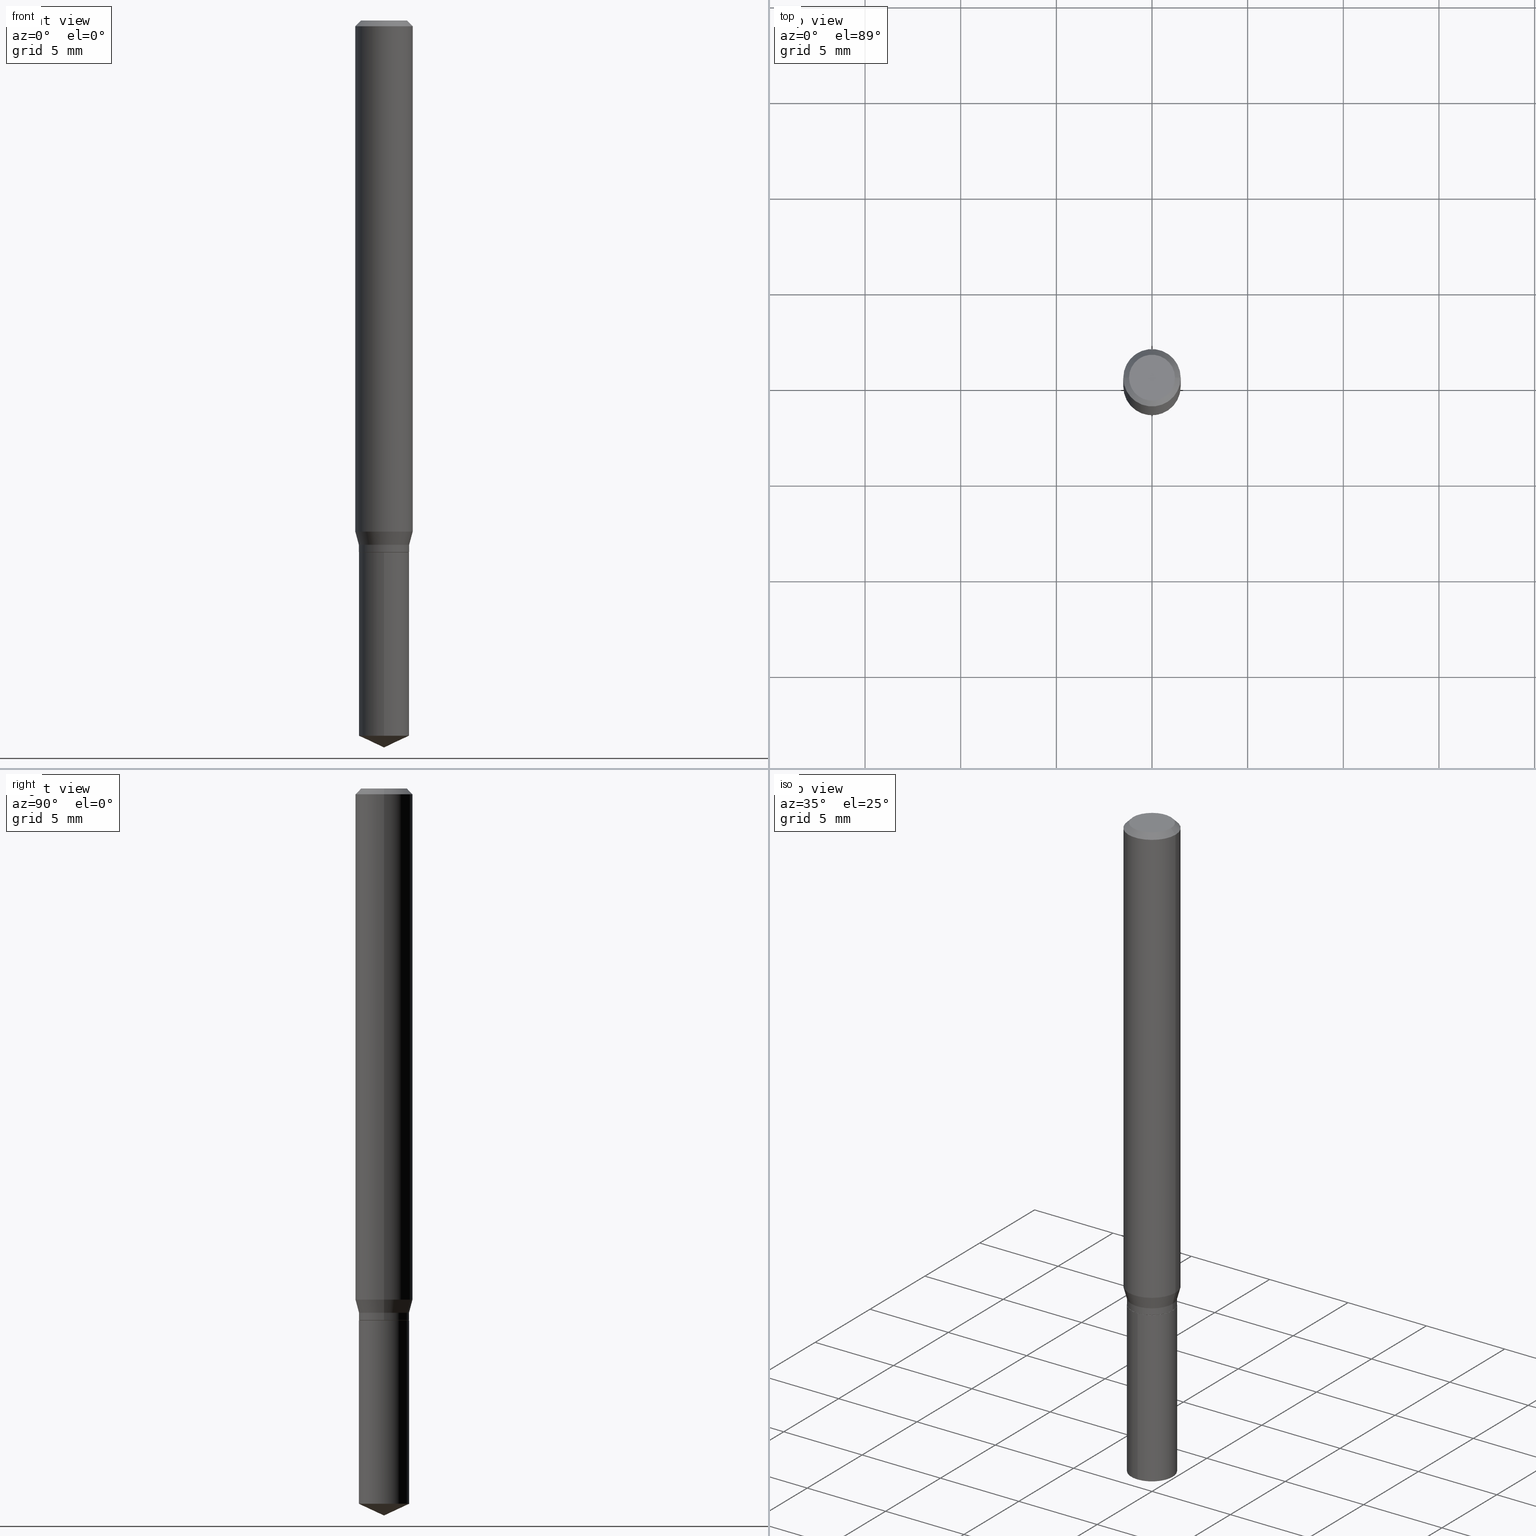
[diagram: canonical four-view strip — front | top / right | iso, engineering-drawing reading convention]
A machine part, canonical four-view strip (front | top / right | iso — engineering-drawing reading convention). The complete STEP part file that produces these views, byte-faithful:
ISO-10303-21;
HEADER;
FILE_DESCRIPTION (( 'STEP AP203' ),
    '1' );
FILE_NAME ('08020.STEP',
    '2024-04-24T09:02:58',
    ( '' ),
    ( '' ),
    'SwSTEP 2.0',
    'SolidWorks 2023',
    '' );
FILE_SCHEMA (( 'CONFIG_CONTROL_DESIGN' ));
ENDSEC;

DATA;
#1 = UNCERTAINTY_MEASURE_WITH_UNIT (LENGTH_MEASURE( 1.000000000000000082E-05 ), #9, 'distance_accuracy_value', 'NONE');
#2 = ADVANCED_FACE ( 'NONE', ( #478 ), #49, .T. ) ;
#3 = LINE ( 'NONE', #380, #401 ) ;
#4 = CYLINDRICAL_SURFACE ( 'NONE', #436, 0.05175000000000000433 ) ;
#5 = AXIS2_PLACEMENT_3D ( 'NONE', #216, #373, #435 ) ;
#6 = LENGTH_MEASURE_WITH_UNIT ( LENGTH_MEASURE( 0.02539999999999999897 ), #129 );
#7 = DIRECTION ( 'NONE',  ( 6.439704144417035086E-15, 0.9063077870366528233, 0.4226182617406932240 ) ) ;
#8 = ORIENTED_EDGE ( 'NONE', *, *, #484, .F. ) ;
#9 =( CONVERSION_BASED_UNIT ( 'INCH', #6 ) LENGTH_UNIT ( ) NAMED_UNIT ( #293 ) );
#10 = EDGE_CURVE ( 'NONE', #250, #333, #288, .T. ) ;
#11 = DIRECTION ( 'NONE',  ( -1.000000000000000000, 6.982962677686266711E-15, 0.000000000000000000 ) ) ;
#12 = VERTEX_POINT ( 'NONE', #270 ) ;
#13 = PERSON_AND_ORGANIZATION ( #91, #233 ) ;
#14 = DIRECTION ( 'NONE',  ( -2.445468806185136597E-29, 3.491481338843145583E-15, 1.000000000000000000 ) ) ;
#15 = DATE_AND_TIME ( #135, #344 ) ;
#16 = VECTOR ( 'NONE', #328, 39.37007874015748143 ) ;
#17 = LOCAL_TIME ( 5, 2, 58.00000000000000000, #253 ) ;
#18 = DIRECTION ( 'NONE',  ( 1.000000000000000000, -6.982962677686261977E-15, 0.000000000000000000 ) ) ;
#19 = VERTEX_POINT ( 'NONE', #341 ) ;
#20 = EDGE_CURVE ( 'NONE', #295, #437, #80, .T. ) ;
#21 = PERSON_AND_ORGANIZATION ( #91, #233 ) ;
#22 = DIRECTION ( 'NONE',  ( -2.445468806185136597E-29, 3.491481338843145583E-15, 1.000000000000000000 ) ) ;
#23 = ORIENTED_EDGE ( 'NONE', *, *, #10, .T. ) ;
#24 = DIRECTION ( 'NONE',  ( -1.000000000000000000, 6.982962677686265922E-15, -4.876176775795935793E-29 ) ) ;
#25 = ORIENTED_EDGE ( 'NONE', *, *, #326, .F. ) ;
#26 = DESIGN_CONTEXT ( 'detailed design', #96, 'design' ) ;
#27 = AXIS2_PLACEMENT_3D ( 'NONE', #460, #166, #282 ) ;
#28 = DIRECTION ( 'NONE',  ( 0.7071067811864267805, -2.468850131080992517E-15, 0.7071067811866682540 ) ) ;
#29 = ORIENTED_EDGE ( 'NONE', *, *, #414, .F. ) ;
#30 = AXIS2_PLACEMENT_3D ( 'NONE', #117, #39, #196 ) ;
#31 = CARTESIAN_POINT ( 'NONE',  ( 0.05175000000000000433, -3.613683185702643042E-16, 2.523421481474396857E-30 ) ) ;
#32 = EDGE_LOOP ( 'NONE', ( #367, #369, #423, #75 ) ) ;
#33 = ORIENTED_EDGE ( 'NONE', *, *, #326, .T. ) ;
#34 = DIRECTION ( 'NONE',  ( -2.445458899330790108E-29, 3.491495526022433205E-15, 1.000000000000000000 ) ) ;
#35 = DIRECTION ( 'NONE',  ( 1.000000000000000000, -6.982962677686265922E-15, 4.876176775795935793E-29 ) ) ;
#36 = CC_DESIGN_PERSON_AND_ORGANIZATION_ASSIGNMENT ( #432, #317, ( #85 ) ) ;
#37 = FACE_OUTER_BOUND ( 'NONE', #456, .T. ) ;
#38 = EDGE_CURVE ( 'NONE', #250, #371, #416, .T. ) ;
#39 = DIRECTION ( 'NONE',  ( -2.445468806185136597E-29, 3.491481338843145583E-15, 1.000000000000000000 ) ) ;
#40 = VECTOR ( 'NONE', #388, 39.37007874015748854 ) ;
#41 = SECURITY_CLASSIFICATION ( '', '', #101 ) ;
#42 = AXIS2_PLACEMENT_3D ( 'NONE', #304, #229, #35 ) ;
#43 = CARTESIAN_POINT ( 'NONE',  ( -0.05175000000000000433, 3.677058657558518770E-16, -2.545548909206914027E-30 ) ) ;
#44 = DIRECTION ( 'NONE',  ( -6.982962677686268288E-15, -1.000000000000000000, 3.520397390770439276E-15 ) ) ;
#45 = EDGE_CURVE ( 'NONE', #58, #371, #136, .T. ) ;
#46 = DATE_AND_TIME ( #358, #182 ) ;
#47 = DIRECTION ( 'NONE',  ( -6.982962677686268288E-15, -1.000000000000000000, 3.520397390770439276E-15 ) ) ;
#48 = ORIENTED_EDGE ( 'NONE', *, *, #414, .T. ) ;
#49 = CONICAL_SURFACE ( 'NONE', #234, 0.05904999999999999832, 0.7853981633974452814 ) ;
#50 = ADVANCED_FACE ( 'NONE', ( #376 ), #193, .T. ) ;
#51 = AXIS2_PLACEMENT_3D ( 'NONE', #57, #272, #11 ) ;
#52 = PERSON_AND_ORGANIZATION ( #91, #233 ) ;
#53 = PRODUCT_DEFINITION_SHAPE ( 'NONE', 'NONE',  #258 ) ;
#54 = CARTESIAN_POINT ( 'NONE',  ( 2.638660841873762235E-29, -3.767308364611753796E-15, -1.078999999999999959 ) ) ;
#55 = ADVANCED_BREP_SHAPE_REPRESENTATION ( '08020', ( #364, #346, #190 ), #74 ) ;
#56 = COORDINATED_UNIVERSAL_TIME_OFFSET ( 5, 0, .BEHIND. ) ;
#57 = CARTESIAN_POINT ( 'NONE',  ( 2.888098660104664204E-31, -4.123439461173780263E-17, -0.01181000000000007218 ) ) ;
#58 = VERTEX_POINT ( 'NONE', #155 ) ;
#59 = APPLICATION_PROTOCOL_DEFINITION ( 'international standard', 'config_control_design', 1994, #96 ) ;
#60 = DIRECTION ( 'NONE',  ( -6.982962677686265133E-15, -1.000000000000000000, 2.639466660545181459E-15 ) ) ;
#61 = EDGE_CURVE ( 'NONE', #219, #287, #354, .T. ) ;
#62 = COORDINATED_UNIVERSAL_TIME_OFFSET ( 5, 0, .BEHIND. ) ;
#63 = VECTOR ( 'NONE', #7, 39.37007874015748854 ) ;
#64 = FACE_OUTER_BOUND ( 'NONE', #103, .T. ) ;
#65 = VECTOR ( 'NONE', #486, 39.37007874015748143 ) ;
#66 = ORIENTED_EDGE ( 'NONE', *, *, #360, .F. ) ;
#67 = CARTESIAN_POINT ( 'NONE',  ( -0.05905000000000006771, 4.195754854663396409E-16, -2.904631170795525045E-30 ) ) ;
#68 = ORIENTED_EDGE ( 'NONE', *, *, #443, .T. ) ;
#69 = EDGE_CURVE ( 'NONE', #287, #219, #489, .T. ) ;
#70 = DIRECTION ( 'NONE',  ( -2.445468806185136877E-29, 3.491481338843145188E-15, 1.000000000000000000 ) ) ;
#71 = EDGE_LOOP ( 'NONE', ( #353, #441, #465, #404 ) ) ;
#72 = APPROVAL_DATE_TIME ( #149, #267 ) ;
#73 = CARTESIAN_POINT ( 'NONE',  ( 0.05124999999999999695, -4.179303162595244416E-15, -1.094500000000000028 ) ) ;
#74 =( GEOMETRIC_REPRESENTATION_CONTEXT ( 3 ) GLOBAL_UNCERTAINTY_ASSIGNED_CONTEXT ( ( #1 ) ) GLOBAL_UNIT_ASSIGNED_CONTEXT ( ( #9, #426, #244 ) ) REPRESENTATION_CONTEXT ( 'NONE', 'WORKASPACE' ) );
#75 = ORIENTED_EDGE ( 'NONE', *, *, #307, .F. ) ;
#76 = ORIENTED_EDGE ( 'NONE', *, *, #98, .T. ) ;
#77 = CYLINDRICAL_SURFACE ( 'NONE', #158, 0.05175000000000000433 ) ;
#78 = CARTESIAN_POINT ( 'NONE',  ( 2.888098660104664204E-31, -4.123439461173780263E-17, -0.01181000000000007218 ) ) ;
#79 = APPROVAL_PERSON_ORGANIZATION ( #387, #267, #179 ) ;
#80 = CIRCLE ( 'NONE', #383, 0.05175000000000000433 ) ;
#81 = DIRECTION ( 'NONE',  ( 1.000000000000000000, -6.982962677686266711E-15, 0.000000000000000000 ) ) ;
#82 = DIRECTION ( 'NONE',  ( 1.000000000000000000, -6.982962677686271444E-15, 0.000000000000000000 ) ) ;
#83 = DIRECTION ( 'NONE',  ( -6.982962677686265133E-15, -1.000000000000000000, 2.639466660545181459E-15 ) ) ;
#84 = CONICAL_SURFACE ( 'NONE', #153, 0.05124999999999999695, 0.7853981633972775267 ) ;
#85 = PRODUCT_DEFINITION_FORMATION_WITH_SPECIFIED_SOURCE ( 'ANY', '', #407, .NOT_KNOWN. ) ;
#86 = EDGE_CURVE ( 'NONE', #93, #263, #121, .T. ) ;
#87 = DIRECTION ( 'NONE',  ( -2.445468806185136597E-29, 3.491481338843145583E-15, 1.000000000000000000 ) ) ;
#88 = EDGE_CURVE ( 'NONE', #371, #58, #197, .T. ) ;
#89 = LINE ( 'NONE', #352, #372 ) ;
#90 = ADVANCED_FACE ( 'NONE', ( #451 ), #321, .T. ) ;
#91 = PERSON ( 'UNSPECIFIED', 'UNSPECIFIED', 'UNSPECIFIED', ('UNSPECIFIED'), ('UNSPECIFIED'), ('UNSPECIFIED') ) ;
#92 = DIRECTION ( 'NONE',  ( 1.000000000000000000, -6.982962677686271444E-15, 0.000000000000000000 ) ) ;
#93 = VERTEX_POINT ( 'NONE', #191 ) ;
#94 = AXIS2_PLACEMENT_3D ( 'NONE', #284, #254, #433 ) ;
#95 = APPLICATION_PROTOCOL_DEFINITION ( 'international standard', 'config_control_design', 1994, #177 ) ;
#96 = APPLICATION_CONTEXT ( 'configuration controlled 3d designs of mechanical parts and assemblies' ) ;
#97 = DIRECTION ( 'NONE',  ( -2.445468806185136597E-29, 3.491481338843145583E-15, 1.000000000000000000 ) ) ;
#98 = EDGE_CURVE ( 'NONE', #437, #219, #340, .T. ) ;
#99 = CARTESIAN_POINT ( 'NONE',  ( 2.676565608369632355E-29, -3.821426325363822773E-15, -1.094500000000000028 ) ) ;
#100 = VERTEX_POINT ( 'NONE', #125 ) ;
#101 = SECURITY_CLASSIFICATION_LEVEL ( 'unclassified' ) ;
#102 = LINE ( 'NONE', #324, #231 ) ;
#103 = EDGE_LOOP ( 'NONE', ( #311, #375, #68, #25 ) ) ;
#104 = AXIS2_PLACEMENT_3D ( 'NONE', #198, #378, #347 ) ;
#105 = LOCAL_TIME ( 5, 2, 58.00000000000000000, #62 ) ;
#106 = DIRECTION ( 'NONE',  ( 1.000000000000000000, -6.982962677686261977E-15, 0.000000000000000000 ) ) ;
#107 = EDGE_LOOP ( 'NONE', ( #138, #434 ) ) ;
#108 = DIRECTION ( 'NONE',  ( 0.2588190451025213501, 1.565188264969621968E-15, 0.9659258262890682012 ) ) ;
#109 = ORIENTED_EDGE ( 'NONE', *, *, #386, .T. ) ;
#110 = CARTESIAN_POINT ( 'NONE',  ( 4.132873053354867254E-48, -5.900647395337818946E-34, -1.690012582823346072E-19 ) ) ;
#111 = ORIENTED_EDGE ( 'NONE', *, *, #165, .T. ) ;
#112 = VECTOR ( 'NONE', #342, 39.37007874015748143 ) ;
#113 = ORIENTED_EDGE ( 'NONE', *, *, #227, .T. ) ;
#114 = CLOSED_SHELL ( 'NONE', ( #170, #215, #274, #156, #395 ) ) ;
#115 = ADVANCED_FACE ( 'NONE', ( #37 ), #194, .F. ) ;
#116 = ORIENTED_EDGE ( 'NONE', *, *, #174, .T. ) ;
#117 = CARTESIAN_POINT ( 'NONE',  ( 2.888098660104664204E-31, -4.123439461173780263E-17, -0.01181000000000007218 ) ) ;
#118 = CC_DESIGN_DATE_AND_TIME_ASSIGNMENT ( #365, #470, ( #41 ) ) ;
#119 = DIRECTION ( 'NONE',  ( -2.445468806185136597E-29, 3.491481338843145583E-15, 1.000000000000000000 ) ) ;
#120 = VECTOR ( 'NONE', #70, 39.37007874015748143 ) ;
#121 = CIRCLE ( 'NONE', #393, 0.05124999999999999695 ) ;
#122 = DIRECTION ( 'NONE',  ( 1.000000000000000000, -6.982962677686261977E-15, 0.000000000000000000 ) ) ;
#123 = CARTESIAN_POINT ( 'NONE',  ( 2.888098660104664204E-31, -4.123439461173780263E-17, -0.01181000000000007218 ) ) ;
#124 = APPROVAL ( #175, 'UNSPECIFIED' ) ;
#125 = CARTESIAN_POINT ( 'NONE',  ( 3.658651059288794515E-29, -5.223626456482161457E-15, -1.496099999999999985 ) ) ;
#126 = AXIS2_PLACEMENT_3D ( 'NONE', #366, #405, #251 ) ;
#127 = CC_DESIGN_SECURITY_CLASSIFICATION ( #41, ( #85 ) ) ;
#128 = LINE ( 'NONE', #421, #40 ) ;
#129 =( LENGTH_UNIT ( ) NAMED_UNIT ( * ) SI_UNIT ( $, .METRE. ) );
#130 = DIRECTION ( 'NONE',  ( -2.445458899330790108E-29, 3.491495526022433205E-15, 1.000000000000000000 ) ) ;
#131 = ORIENTED_EDGE ( 'NONE', *, *, #98, .F. ) ;
#132 = CALENDAR_DATE ( 2024, 24, 4 ) ;
#133 = DIRECTION ( 'NONE',  ( -6.982962677686265133E-15, -1.000000000000000000, 2.639466660545181459E-15 ) ) ;
#134 = EDGE_CURVE ( 'NONE', #188, #19, #345, .T. ) ;
#135 = CALENDAR_DATE ( 2024, 24, 4 ) ;
#136 = CIRCLE ( 'NONE', #30, 0.05904999999999999832 ) ;
#137 = DIRECTION ( 'NONE',  ( -2.445458899330790108E-29, 3.491495526022433599E-15, 1.000000000000000000 ) ) ;
#138 = ORIENTED_EDGE ( 'NONE', *, *, #69, .T. ) ;
#139 = COORDINATED_UNIVERSAL_TIME_OFFSET ( 5, 0, .BEHIND. ) ;
#140 = DIRECTION ( 'NONE',  ( 1.000000000000000000, -6.982962677686271444E-15, 0.000000000000000000 ) ) ;
#141 = ORIENTED_EDGE ( 'NONE', *, *, #240, .T. ) ;
#142 = ADVANCED_FACE ( 'NONE', ( #223 ), #384, .T. ) ;
#143 = CARTESIAN_POINT ( 'NONE',  ( 2.638660841873762235E-29, -3.767308364611753796E-15, -1.078999999999999959 ) ) ;
#144 = VERTEX_POINT ( 'NONE', #450 ) ;
#145 = PLANE ( 'NONE',  #94 ) ;
#146 = EDGE_LOOP ( 'NONE', ( #474, #23 ) ) ;
#147 = LINE ( 'NONE', #73, #488 ) ;
#148 = ORIENTED_EDGE ( 'NONE', *, *, #134, .F. ) ;
#149 = DATE_AND_TIME ( #481, #17 ) ;
#150 = CARTESIAN_POINT ( 'NONE',  ( 0.000000000000000000, 0.000000000000000000, 0.000000000000000000 ) ) ;
#151 = EDGE_LOOP ( 'NONE', ( #255, #313, #431, #260 ) ) ;
#152 = EDGE_CURVE ( 'NONE', #93, #188, #3, .T. ) ;
#153 = AXIS2_PLACEMENT_3D ( 'NONE', #289, #294, #140 ) ;
#154 = EDGE_LOOP ( 'NONE', ( #113, #442, #411, #66 ) ) ;
#155 = CARTESIAN_POINT ( 'NONE',  ( -0.05904999999999999832, -1.437134986157024295E-15, -0.01181000000000007218 ) ) ;
#156 = ADVANCED_FACE ( 'NONE', ( #306 ), #77, .T. ) ;
#157 = CARTESIAN_POINT ( 'NONE',  ( 2.676565608369631794E-29, -3.821426325363822773E-15, -1.094499999999999806 ) ) ;
#158 = AXIS2_PLACEMENT_3D ( 'NONE', #485, #210, #60 ) ;
#159 = DIRECTION ( 'NONE',  ( -2.445468806185136597E-29, 3.491481338843145583E-15, 1.000000000000000000 ) ) ;
#160 = AXIS2_PLACEMENT_3D ( 'NONE', #161, #413, #418 ) ;
#161 = CARTESIAN_POINT ( 'NONE',  ( 2.676565608369631794E-29, -3.821426325363822773E-15, -1.094499999999999806 ) ) ;
#162 = DIRECTION ( 'NONE',  ( -0.7071067811864267805, 7.493145998869918709E-15, 0.7071067811866682540 ) ) ;
#163 = CARTESIAN_POINT ( 'NONE',  ( 2.676565608369631794E-29, -3.821426325363822773E-15, -1.094499999999999806 ) ) ;
#164 = AXIS2_PLACEMENT_3D ( 'NONE', #169, #245, #396 ) ;
#165 = EDGE_CURVE ( 'NONE', #100, #437, #392, .T. ) ;
#166 = DIRECTION ( 'NONE',  ( -2.445458899330790108E-29, 3.491495526022433205E-15, 1.000000000000000000 ) ) ;
#167 = DATE_AND_TIME ( #132, #204 ) ;
#168 = APPROVAL ( #171, 'UNSPECIFIED' ) ;
#169 = CARTESIAN_POINT ( 'NONE',  ( 2.675342873966538993E-29, -3.819680584694400481E-15, -1.093999999999999861 ) ) ;
#170 = ADVANCED_FACE ( 'NONE', ( #430 ), #4, .T. ) ;
#171 = APPROVAL_STATUS ( 'not_yet_approved' ) ;
#172 = CARTESIAN_POINT ( 'NONE',  ( -9.261924752013118283E-28, 1.322368428517963298E-13, 37.87397874015748300 ) ) ;
#173 = DIRECTION ( 'NONE',  ( 1.000000000000000000, -6.982962677686265133E-15, 0.000000000000000000 ) ) ;
#174 = EDGE_CURVE ( 'NONE', #100, #295, #128, .T. ) ;
#175 = APPROVAL_STATUS ( 'not_yet_approved' ) ;
#176 = FACE_OUTER_BOUND ( 'NONE', #444, .T. ) ;
#177 = APPLICATION_CONTEXT ( 'configuration controlled 3d designs of mechanical parts and assemblies' ) ;
#178 = ORIENTED_EDGE ( 'NONE', *, *, #316, .F. ) ;
#179 = APPROVAL_ROLE ( '' ) ;
#180 = CYLINDRICAL_SURFACE ( 'NONE', #211, 0.05175000000000000433 ) ;
#181 = ORIENTED_EDGE ( 'NONE', *, *, #134, .T. ) ;
#182 = LOCAL_TIME ( 5, 2, 58.00000000000000000, #56 ) ;
#183 = LINE ( 'NONE', #31, #16 ) ;
#184 = AXIS2_PLACEMENT_3D ( 'NONE', #305, #419, #301 ) ;
#185 = VERTEX_POINT ( 'NONE', #359 ) ;
#186 = PLANE ( 'NONE',  #298 ) ;
#187 = VERTEX_POINT ( 'NONE', #309 ) ;
#188 = VERTEX_POINT ( 'NONE', #464 ) ;
#189 = CONICAL_SURFACE ( 'NONE', #308, 0.05175000000000000433, 0.2617993877991500740 ) ;
#190 = AXIS2_PLACEMENT_3D ( 'NONE', #361, #285, #468 ) ;
#191 = CARTESIAN_POINT ( 'NONE',  ( -0.05124999999999999695, -3.454623946112660495E-15, -1.094500000000000028 ) ) ;
#192 = EDGE_CURVE ( 'NONE', #12, #187, #203, .T. ) ;
#193 = CYLINDRICAL_SURFACE ( 'NONE', #184, 0.05905000000000006771 ) ;
#194 = PLANE ( 'NONE',  #42 ) ;
#195 = VECTOR ( 'NONE', #471, 39.37007874015748143 ) ;
#196 = DIRECTION ( 'NONE',  ( 1.000000000000000000, -6.982962677686266711E-15, 0.000000000000000000 ) ) ;
#197 = CIRCLE ( 'NONE', #466, 0.05904999999999999832 ) ;
#198 = CARTESIAN_POINT ( 'NONE',  ( 0.000000000000000000, 0.000000000000000000, 0.000000000000000000 ) ) ;
#199 = DIRECTION ( 'NONE',  ( 1.000000000000000000, -6.982962677686265133E-15, 0.000000000000000000 ) ) ;
#200 = APPROVAL_ROLE ( '' ) ;
#201 = CARTESIAN_POINT ( 'NONE',  ( -9.261924752013118283E-28, 1.322368428517963298E-13, 37.87397874015748300 ) ) ;
#202 = ORIENTED_EDGE ( 'NONE', *, *, #386, .F. ) ;
#203 = CIRCLE ( 'NONE', #252, 0.05905000000000013016 ) ;
#204 = LOCAL_TIME ( 5, 2, 58.00000000000000000, #236 ) ;
#205 = DIRECTION ( 'NONE',  ( -0.2588190451025213501, 5.211531920934551042E-15, 0.9659258262890682012 ) ) ;
#206 = PERSON_AND_ORGANIZATION_ROLE ( 'creator' ) ;
#207 = LINE ( 'NONE', #67, #195 ) ;
#208 = EDGE_LOOP ( 'NONE', ( #109, #181, #178, #29 ) ) ;
#209 = APPROVAL_DATE_TIME ( #167, #168 ) ;
#210 = DIRECTION ( 'NONE',  ( -2.445458899330790108E-29, 3.491495526022433205E-15, 1.000000000000000000 ) ) ;
#211 = AXIS2_PLACEMENT_3D ( 'NONE', #150, #22, #256 ) ;
#212 = CALENDAR_DATE ( 2024, 24, 4 ) ;
#213 = FACE_OUTER_BOUND ( 'NONE', #146, .T. ) ;
#214 = ORIENTED_EDGE ( 'NONE', *, *, #192, .T. ) ;
#215 = ADVANCED_FACE ( 'NONE', ( #455 ), #448, .T. ) ;
#216 = CARTESIAN_POINT ( 'NONE',  ( 2.675342873966538993E-29, -3.819680584694400481E-15, -1.093999999999999861 ) ) ;
#217 = ORIENTED_EDGE ( 'NONE', *, *, #20, .F. ) ;
#218 = CARTESIAN_POINT ( 'NONE',  ( 2.638660841873762235E-29, -3.767308364611753796E-15, -1.078999999999999959 ) ) ;
#219 = VERTEX_POINT ( 'NONE', #273 ) ;
#220 = FACE_OUTER_BOUND ( 'NONE', #208, .T. ) ;
#221 = ORIENTED_EDGE ( 'NONE', *, *, #192, .F. ) ;
#222 = EDGE_LOOP ( 'NONE', ( #389, #214, #280, #291 ) ) ;
#223 = FACE_OUTER_BOUND ( 'NONE', #154, .T. ) ;
#224 = EDGE_CURVE ( 'NONE', #295, #287, #276, .T. ) ;
#225 = CIRCLE ( 'NONE', #319, 0.05905000000000013016 ) ;
#226 = CARTESIAN_POINT ( 'NONE',  ( 2.638660841873762235E-29, -3.767308364611753796E-15, -1.078999999999999959 ) ) ;
#227 = EDGE_CURVE ( 'NONE', #187, #12, #225, .T. ) ;
#228 = DIRECTION ( 'NONE',  ( -2.445458899330790108E-29, 3.491495526022433599E-15, 1.000000000000000000 ) ) ;
#229 = DIRECTION ( 'NONE',  ( -2.438088387897960049E-29, 3.491481338843145188E-15, 1.000000000000000000 ) ) ;
#230 = EDGE_CURVE ( 'NONE', #437, #295, #377, .T. ) ;
#231 = VECTOR ( 'NONE', #108, 39.37007874015747433 ) ;
#232 = CARTESIAN_POINT ( 'NONE',  ( 3.677058657558785503E-16, 0.05174999999999617406, -1.094500000000000028 ) ) ;
#233 = ORGANIZATION ( 'UNSPECIFIED', 'UNSPECIFIED', '' ) ;
#234 = AXIS2_PLACEMENT_3D ( 'NONE', #123, #487, #266 ) ;
#235 = DIRECTION ( 'NONE',  ( 1.000000000000000000, -6.982962677686266711E-15, 4.876185090822587894E-29 ) ) ;
#236 = COORDINATED_UNIVERSAL_TIME_OFFSET ( 5, 0, .BEHIND. ) ;
#237 = DIRECTION ( 'NONE',  ( -0.7071067811865453523, 2.468850131082234184E-15, -0.7071067811865496822 ) ) ;
#238 = CC_DESIGN_PERSON_AND_ORGANIZATION_ASSIGNMENT ( #52, #355, ( #407 ) ) ;
#239 = ORIENTED_EDGE ( 'NONE', *, *, #320, .F. ) ;
#240 = EDGE_CURVE ( 'NONE', #263, #93, #242, .T. ) ;
#241 = CARTESIAN_POINT ( 'NONE',  ( -3.613683185702375323E-16, -0.05175000000000382766, -1.094499999999999806 ) ) ;
#242 = CIRCLE ( 'NONE', #427, 0.05124999999999999695 ) ;
#243 = VECTOR ( 'NONE', #228, 39.37007874015748143 ) ;
#244 =( NAMED_UNIT ( * ) SI_UNIT ( $, .STERADIAN. ) SOLID_ANGLE_UNIT ( ) );
#245 = DIRECTION ( 'NONE',  ( -2.445468806185136597E-29, 3.491481338843145583E-15, 1.000000000000000000 ) ) ;
#246 = ORIENTED_EDGE ( 'NONE', *, *, #443, .F. ) ;
#247 = MECHANICAL_CONTEXT ( 'NONE', #177, 'mechanical' ) ;
#248 = CC_DESIGN_PERSON_AND_ORGANIZATION_ASSIGNMENT ( #323, #457, ( #85 ) ) ;
#249 = CARTESIAN_POINT ( 'NONE',  ( 0.05124999999999999695, -4.179303162595244416E-15, -1.094500000000000028 ) ) ;
#250 = VERTEX_POINT ( 'NONE', #322 ) ;
#251 = DIRECTION ( 'NONE',  ( 1.000000000000000000, -6.982962677686265922E-15, 4.876176775795935793E-29 ) ) ;
#252 = AXIS2_PLACEMENT_3D ( 'NONE', #362, #14, #199 ) ;
#253 = COORDINATED_UNIVERSAL_TIME_OFFSET ( 5, 0, .BEHIND. ) ;
#254 = DIRECTION ( 'NONE',  ( 2.445458899330789267E-29, -3.491495526022433599E-15, -1.000000000000000000 ) ) ;
#255 = ORIENTED_EDGE ( 'NONE', *, *, #316, .T. ) ;
#256 = DIRECTION ( 'NONE',  ( 1.000000000000000000, -6.982962677686265922E-15, 4.876176775795935793E-29 ) ) ;
#257 = ORIENTED_EDGE ( 'NONE', *, *, #230, .F. ) ;
#258 = PRODUCT_DEFINITION ( 'UNKNOWN', '', #85, #26 ) ;
#259 = FACE_OUTER_BOUND ( 'NONE', #107, .T. ) ;
#260 = ORIENTED_EDGE ( 'NONE', *, *, #400, .F. ) ;
#261 = AXIS2_PLACEMENT_3D ( 'NONE', #379, #446, #490 ) ;
#262 = EDGE_LOOP ( 'NONE', ( #439, #76, #429, #409 ) ) ;
#263 = VERTEX_POINT ( 'NONE', #249 ) ;
#264 = CARTESIAN_POINT ( 'NONE',  ( 3.599649503346007768E-29, -5.139356179075677332E-15, -1.471968578690479035 ) ) ;
#265 = AXIS2_PLACEMENT_3D ( 'NONE', #54, #87, #18 ) ;
#266 = DIRECTION ( 'NONE',  ( -1.000000000000000000, 6.982962677686266711E-15, 0.000000000000000000 ) ) ;
#267 = APPROVAL ( #350, 'UNSPECIFIED' ) ;
#268 = CARTESIAN_POINT ( 'NONE',  ( 0.05904999999999999832, -4.463468013801466955E-16, -0.01181000000000007218 ) ) ;
#269 = EDGE_CURVE ( 'NONE', #333, #250, #331, .T. ) ;
#270 = CARTESIAN_POINT ( 'NONE',  ( -0.05905000000000013016, -3.252611063168651144E-15, -1.051756029104746748 ) ) ;
#271 = CONICAL_SURFACE ( 'NONE', #343, 84.42940631927469042, 1.134464013796317561 ) ;
#272 = DIRECTION ( 'NONE',  ( 2.445468806185136597E-29, -3.491481338843145583E-15, -1.000000000000000000 ) ) ;
#273 = CARTESIAN_POINT ( 'NONE',  ( 3.677058657558878194E-16, 0.05174999999999617406, -1.094500000000000028 ) ) ;
#274 = ADVANCED_FACE ( 'NONE', ( #356 ), #271, .T. ) ;
#275 = ORIENTED_EDGE ( 'NONE', *, *, #174, .F. ) ;
#276 = LINE ( 'NONE', #312, #363 ) ;
#277 = DIRECTION ( 'NONE',  ( 1.000000000000000000, -6.982962677686261977E-15, 0.000000000000000000 ) ) ;
#278 = FACE_OUTER_BOUND ( 'NONE', #32, .T. ) ;
#279 = CIRCLE ( 'NONE', #5, 0.05175000000000000433 ) ;
#280 = ORIENTED_EDGE ( 'NONE', *, *, #360, .T. ) ;
#281 = APPROVAL_PERSON_ORGANIZATION ( #462, #168, #394 ) ;
#282 = DIRECTION ( 'NONE',  ( -6.982962677686265133E-15, -1.000000000000000000, 5.278933321090362918E-15 ) ) ;
#283 = ORIENTED_EDGE ( 'NONE', *, *, #86, .F. ) ;
#284 = CARTESIAN_POINT ( 'NONE',  ( 2.676565608369631794E-29, -3.821426325363822773E-15, -1.094499999999999806 ) ) ;
#285 = DIRECTION ( 'NONE',  ( 0.000000000000000000, 0.000000000000000000, 1.000000000000000000 ) ) ;
#286 = DIRECTION ( 'NONE',  ( -2.445468806185136597E-29, 3.491481338843145583E-15, 1.000000000000000000 ) ) ;
#287 = VERTEX_POINT ( 'NONE', #241 ) ;
#288 = CIRCLE ( 'NONE', #261, 0.04724000000000000421 ) ;
#289 = CARTESIAN_POINT ( 'NONE',  ( 2.676565608369632355E-29, -3.821426325363822773E-15, -1.094500000000000028 ) ) ;
#290 = CC_DESIGN_PERSON_AND_ORGANIZATION_ASSIGNMENT ( #21, #206, ( #258 ) ) ;
#291 = ORIENTED_EDGE ( 'NONE', *, *, #45, .F. ) ;
#292 = SHAPE_DEFINITION_REPRESENTATION ( #53, #55 ) ;
#293 = DIMENSIONAL_EXPONENTS ( 1.000000000000000000, 0.000000000000000000, 0.000000000000000000, 0.000000000000000000, 0.000000000000000000, 0.000000000000000000, 0.000000000000000000 ) ;
#294 = DIRECTION ( 'NONE',  ( -2.445468806185136597E-29, 3.491481338843145583E-15, 1.000000000000000000 ) ) ;
#295 = VERTEX_POINT ( 'NONE', #385 ) ;
#296 = CYLINDRICAL_SURFACE ( 'NONE', #126, 0.05175000000000000433 ) ;
#297 = ORIENTED_EDGE ( 'NONE', *, *, #484, .T. ) ;
#298 = AXIS2_PLACEMENT_3D ( 'NONE', #110, #403, #24 ) ;
#299 = EDGE_LOOP ( 'NONE', ( #131, #329, #325, #482 ) ) ;
#300 = ADVANCED_FACE ( 'NONE', ( #278 ), #339, .T. ) ;
#301 = DIRECTION ( 'NONE',  ( 1.000000000000000000, -6.982962677686266711E-15, 4.876176775795936353E-29 ) ) ;
#302 = DIRECTION ( 'NONE',  ( -6.982962677686265133E-15, -1.000000000000000000, 5.278933321090362918E-15 ) ) ;
#303 = CIRCLE ( 'NONE', #164, 0.05175000000000000433 ) ;
#304 = CARTESIAN_POINT ( 'NONE',  ( 6.395791030270134867E-30, -6.738506939086296803E-15, -1.094500000000000028 ) ) ;
#305 = CARTESIAN_POINT ( 'NONE',  ( 0.000000000000000000, 0.000000000000000000, 0.000000000000000000 ) ) ;
#306 = FACE_OUTER_BOUND ( 'NONE', #299, .T. ) ;
#307 = EDGE_CURVE ( 'NONE', #333, #58, #428, .T. ) ;
#308 = AXIS2_PLACEMENT_3D ( 'NONE', #143, #286, #106 ) ;
#309 = CARTESIAN_POINT ( 'NONE',  ( 0.05905000000000013016, -4.084530494752366346E-15, -1.051756029104746748 ) ) ;
#310 = CC_DESIGN_APPROVAL ( #124, ( #85 ) ) ;
#311 = ORIENTED_EDGE ( 'NONE', *, *, #152, .F. ) ;
#312 = CARTESIAN_POINT ( 'NONE',  ( -3.613683185702375323E-16, -0.05175000000000382766, -1.094499999999999806 ) ) ;
#313 = ORIENTED_EDGE ( 'NONE', *, *, #320, .T. ) ;
#314 = APPROVAL_DATE_TIME ( #15, #124 ) ;
#315 = DIRECTION ( 'NONE',  ( -2.445458899330790108E-29, 3.491495526022433205E-15, 1.000000000000000000 ) ) ;
#316 = EDGE_CURVE ( 'NONE', #144, #19, #410, .T. ) ;
#317 = PERSON_AND_ORGANIZATION_ROLE ( 'design_supplier' ) ;
#318 = DIRECTION ( 'NONE',  ( -2.445468806185136597E-29, 3.491481338843145583E-15, 1.000000000000000000 ) ) ;
#319 = AXIS2_PLACEMENT_3D ( 'NONE', #422, #97, #173 ) ;
#320 = EDGE_CURVE ( 'NONE', #19, #12, #89, .T. ) ;
#321 = CONICAL_SURFACE ( 'NONE', #449, 0.05175000000000000433, 0.2617993877991500740 ) ;
#322 = CARTESIAN_POINT ( 'NONE',  ( 0.04724000000000000421, -3.852183633974369345E-16, -3.380025165621689721E-19 ) ) ;
#323 = PERSON_AND_ORGANIZATION ( #91, #233 ) ;
#324 = CARTESIAN_POINT ( 'NONE',  ( 0.05175000000000000433, -4.128676683182017657E-15, -1.078999999999999959 ) ) ;
#325 = ORIENTED_EDGE ( 'NONE', *, *, #224, .T. ) ;
#326 = EDGE_CURVE ( 'NONE', #188, #185, #303, .T. ) ;
#327 = EDGE_CURVE ( 'NONE', #12, #58, #207, .T. ) ;
#328 = DIRECTION ( 'NONE',  ( -2.445468806185136877E-29, 3.491481338843145188E-15, 1.000000000000000000 ) ) ;
#329 = ORIENTED_EDGE ( 'NONE', *, *, #230, .T. ) ;
#330 = AXIS2_PLACEMENT_3D ( 'NONE', #368, #479, #408 ) ;
#331 = CIRCLE ( 'NONE', #381, 0.04724000000000000421 ) ;
#332 = CARTESIAN_POINT ( 'NONE',  ( 0.05905000000000006771, -4.123439461173745257E-16, 2.879382386107503723E-30 ) ) ;
#333 = VERTEX_POINT ( 'NONE', #399 ) ;
#334 = FACE_OUTER_BOUND ( 'NONE', #349, .T. ) ;
#335 = PRODUCT_RELATED_PRODUCT_CATEGORY ( 'detail', '', ( #407 ) ) ;
#336 = ORIENTED_EDGE ( 'NONE', *, *, #152, .T. ) ;
#337 = EDGE_LOOP ( 'NONE', ( #148, #33, #48, #8 ) ) ;
#338 = ADVANCED_FACE ( 'NONE', ( #213 ), #186, .F. ) ;
#339 = CONICAL_SURFACE ( 'NONE', #51, 0.05904999999999999832, 0.7853981633974452814 ) ;
#340 = LINE ( 'NONE', #232, #243 ) ;
#341 = CARTESIAN_POINT ( 'NONE',  ( -0.05175000000000000433, -3.425788608897225557E-15, -1.078999999999999959 ) ) ;
#342 = DIRECTION ( 'NONE',  ( -2.445468806185136877E-29, 3.491481338843145188E-15, 1.000000000000000000 ) ) ;
#343 = AXIS2_PLACEMENT_3D ( 'NONE', #201, #425, #44 ) ;
#344 = LOCAL_TIME ( 5, 2, 58.00000000000000000, #139 ) ;
#345 = LINE ( 'NONE', #43, #112 ) ;
#346 = MANIFOLD_SOLID_BREP ( 'Body-Move/Copy2[2]', #483 ) ;
#347 = DIRECTION ( 'NONE',  ( 1.000000000000000000, -6.982962677686266711E-15, 4.876176775795936353E-29 ) ) ;
#348 = CARTESIAN_POINT ( 'NONE',  ( 3.658672935554494692E-29, -5.223595400746700193E-15, -1.496099999999999985 ) ) ;
#349 = EDGE_LOOP ( 'NONE', ( #141, #336, #202, #246 ) ) ;
#350 = APPROVAL_STATUS ( 'not_yet_approved' ) ;
#351 = CIRCLE ( 'NONE', #420, 0.05175000000000000433 ) ;
#352 = CARTESIAN_POINT ( 'NONE',  ( -0.05175000000000000433, -3.399602498855901821E-15, -1.078999999999999959 ) ) ;
#353 = ORIENTED_EDGE ( 'NONE', *, *, #38, .F. ) ;
#354 = CIRCLE ( 'NONE', #160, 0.05175000000000000433 ) ;
#355 = PERSON_AND_ORGANIZATION_ROLE ( 'design_owner' ) ;
#356 = FACE_OUTER_BOUND ( 'NONE', #472, .T. ) ;
#357 = ORIENTED_EDGE ( 'NONE', *, *, #240, .F. ) ;
#358 = CALENDAR_DATE ( 2024, 24, 4 ) ;
#359 = CARTESIAN_POINT ( 'NONE',  ( 0.05175000000000000433, -4.181048903264665130E-15, -1.093999999999999861 ) ) ;
#360 = EDGE_CURVE ( 'NONE', #187, #371, #370, .T. ) ;
#361 = CARTESIAN_POINT ( 'NONE',  ( 0.000000000000000000, 0.000000000000000000, 0.000000000000000000 ) ) ;
#362 = CARTESIAN_POINT ( 'NONE',  ( 2.572036560892804425E-29, -3.672186548634991426E-15, -1.051756029104746748 ) ) ;
#363 = VECTOR ( 'NONE', #137, 39.37007874015748143 ) ;
#364 = MANIFOLD_SOLID_BREP ( 'Body-Move/Copy2[1]', #114 ) ;
#365 = DATE_AND_TIME ( #212, #105 ) ;
#366 = CARTESIAN_POINT ( 'NONE',  ( 0.000000000000000000, 0.000000000000000000, 0.000000000000000000 ) ) ;
#367 = ORIENTED_EDGE ( 'NONE', *, *, #10, .F. ) ;
#368 = CARTESIAN_POINT ( 'NONE',  ( 2.676565608369632355E-29, -3.821426325363822773E-15, -1.094500000000000028 ) ) ;
#369 = ORIENTED_EDGE ( 'NONE', *, *, #38, .T. ) ;
#370 = LINE ( 'NONE', #332, #120 ) ;
#371 = VERTEX_POINT ( 'NONE', #473 ) ;
#372 = VECTOR ( 'NONE', #205, 39.37007874015747433 ) ;
#373 = DIRECTION ( 'NONE',  ( -2.445468806185136597E-29, 3.491481338843145583E-15, 1.000000000000000000 ) ) ;
#374 = ORIENTED_EDGE ( 'NONE', *, *, #400, .T. ) ;
#375 = ORIENTED_EDGE ( 'NONE', *, *, #86, .T. ) ;
#376 = FACE_OUTER_BOUND ( 'NONE', #222, .T. ) ;
#377 = CIRCLE ( 'NONE', #27, 0.05175000000000000433 ) ;
#378 = DIRECTION ( 'NONE',  ( -2.445468806185136597E-29, 3.491481338843145583E-15, 1.000000000000000000 ) ) ;
#379 = CARTESIAN_POINT ( 'NONE',  ( 8.265746106709734507E-48, -1.180129479067563789E-33, -3.380025165646692144E-19 ) ) ;
#380 = CARTESIAN_POINT ( 'NONE',  ( -0.05124999999999999695, -3.457273173286771302E-15, -1.094500000000000028 ) ) ;
#381 = AXIS2_PLACEMENT_3D ( 'NONE', #397, #469, #235 ) ;
#382 = CC_DESIGN_PERSON_AND_ORGANIZATION_ASSIGNMENT ( #390, #398, ( #41 ) ) ;
#383 = AXIS2_PLACEMENT_3D ( 'NONE', #264, #412, #302 ) ;
#384 = CYLINDRICAL_SURFACE ( 'NONE', #104, 0.05905000000000006771 ) ;
#385 = CARTESIAN_POINT ( 'NONE',  ( -3.613683185702283618E-16, -0.05175000000000515993, -1.471968578690478591 ) ) ;
#386 = EDGE_CURVE ( 'NONE', #185, #188, #279, .T. ) ;
#387 = PERSON_AND_ORGANIZATION ( #91, #233 ) ;
#388 = DIRECTION ( 'NONE',  ( -6.328713451373378056E-15, -0.9063077870366498257, 0.4226182617406994968 ) ) ;
#389 = ORIENTED_EDGE ( 'NONE', *, *, #327, .F. ) ;
#390 = PERSON_AND_ORGANIZATION ( #91, #233 ) ;
#391 = VECTOR ( 'NONE', #237, 39.37007874015748143 ) ;
#392 = LINE ( 'NONE', #348, #63 ) ;
#393 = AXIS2_PLACEMENT_3D ( 'NONE', #447, #159, #82 ) ;
#394 = APPROVAL_ROLE ( '' ) ;
#395 = ADVANCED_FACE ( 'NONE', ( #259 ), #145, .F. ) ;
#396 = DIRECTION ( 'NONE',  ( 1.000000000000000000, -6.982962677686261977E-15, 0.000000000000000000 ) ) ;
#397 = CARTESIAN_POINT ( 'NONE',  ( 8.265746106709734507E-48, -1.180129479067563789E-33, -3.380025165646692144E-19 ) ) ;
#398 = PERSON_AND_ORGANIZATION_ROLE ( 'classification_officer' ) ;
#399 = CARTESIAN_POINT ( 'NONE',  ( -0.04724000000000000421, 3.504923541997677355E-16, -3.380025165670481712E-19 ) ) ;
#400 = EDGE_CURVE ( 'NONE', #144, #187, #102, .T. ) ;
#401 = VECTOR ( 'NONE', #162, 39.37007874015748143 ) ;
#402 = CC_DESIGN_APPROVAL ( #168, ( #258 ) ) ;
#403 = DIRECTION ( 'NONE',  ( 2.438088387897960049E-29, -3.491481338843145188E-15, -1.000000000000000000 ) ) ;
#404 = ORIENTED_EDGE ( 'NONE', *, *, #45, .T. ) ;
#405 = DIRECTION ( 'NONE',  ( -2.445468806185136597E-29, 3.491481338843145583E-15, 1.000000000000000000 ) ) ;
#406 = ORIENTED_EDGE ( 'NONE', *, *, #165, .F. ) ;
#407 = PRODUCT ( '08020', '08020', '', ( #247 ) ) ;
#408 = DIRECTION ( 'NONE',  ( 1.000000000000000000, -6.982962677686271444E-15, 0.000000000000000000 ) ) ;
#409 = ORIENTED_EDGE ( 'NONE', *, *, #224, .F. ) ;
#410 = CIRCLE ( 'NONE', #265, 0.05175000000000000433 ) ;
#411 = ORIENTED_EDGE ( 'NONE', *, *, #88, .F. ) ;
#412 = DIRECTION ( 'NONE',  ( -2.445458899330790108E-29, 3.491495526022433205E-15, 1.000000000000000000 ) ) ;
#413 = DIRECTION ( 'NONE',  ( -2.445458899330790108E-29, 3.491495526022433205E-15, 1.000000000000000000 ) ) ;
#414 = EDGE_CURVE ( 'NONE', #185, #144, #183, .T. ) ;
#415 = AXIS2_PLACEMENT_3D ( 'NONE', #172, #315, #47 ) ;
#416 = LINE ( 'NONE', #268, #65 ) ;
#417 = ADVANCED_FACE ( 'NONE', ( #64 ), #463, .T. ) ;
#418 = DIRECTION ( 'NONE',  ( -6.982962677686265133E-15, -1.000000000000000000, 2.639466660545181459E-15 ) ) ;
#419 = DIRECTION ( 'NONE',  ( -2.445468806185136597E-29, 3.491481338843145583E-15, 1.000000000000000000 ) ) ;
#420 = AXIS2_PLACEMENT_3D ( 'NONE', #218, #440, #277 ) ;
#421 = CARTESIAN_POINT ( 'NONE',  ( 3.658651059288795076E-29, -5.223626456482161457E-15, -1.496099999999999985 ) ) ;
#422 = CARTESIAN_POINT ( 'NONE',  ( 2.572036560892804425E-29, -3.672186548634991426E-15, -1.051756029104746748 ) ) ;
#423 = ORIENTED_EDGE ( 'NONE', *, *, #88, .T. ) ;
#424 = DATE_TIME_ROLE ( 'creation_date' ) ;
#425 = DIRECTION ( 'NONE',  ( -2.445458899330790108E-29, 3.491495526022433205E-15, 1.000000000000000000 ) ) ;
#426 =( NAMED_UNIT ( * ) PLANE_ANGLE_UNIT ( ) SI_UNIT ( $, .RADIAN. ) );
#427 = AXIS2_PLACEMENT_3D ( 'NONE', #99, #318, #92 ) ;
#428 = LINE ( 'NONE', #458, #391 ) ;
#429 = ORIENTED_EDGE ( 'NONE', *, *, #69, .F. ) ;
#430 = FACE_OUTER_BOUND ( 'NONE', #262, .T. ) ;
#431 = ORIENTED_EDGE ( 'NONE', *, *, #227, .F. ) ;
#432 = PERSON_AND_ORGANIZATION ( #91, #233 ) ;
#433 = DIRECTION ( 'NONE',  ( 6.982962677686265922E-15, 1.000000000000000000, -3.491495526022433599E-15 ) ) ;
#434 = ORIENTED_EDGE ( 'NONE', *, *, #61, .T. ) ;
#435 = DIRECTION ( 'NONE',  ( 1.000000000000000000, -6.982962677686261977E-15, 0.000000000000000000 ) ) ;
#436 = AXIS2_PLACEMENT_3D ( 'NONE', #163, #130, #133 ) ;
#437 = VERTEX_POINT ( 'NONE', #477 ) ;
#438 = FACE_OUTER_BOUND ( 'NONE', #337, .T. ) ;
#439 = ORIENTED_EDGE ( 'NONE', *, *, #20, .T. ) ;
#440 = DIRECTION ( 'NONE',  ( -2.445468806185136597E-29, 3.491481338843145583E-15, 1.000000000000000000 ) ) ;
#441 = ORIENTED_EDGE ( 'NONE', *, *, #269, .F. ) ;
#442 = ORIENTED_EDGE ( 'NONE', *, *, #327, .T. ) ;
#443 = EDGE_CURVE ( 'NONE', #263, #185, #147, .T. ) ;
#444 = EDGE_LOOP ( 'NONE', ( #239, #297, #374, #221 ) ) ;
#445 = ADVANCED_FACE ( 'NONE', ( #220 ), #296, .T. ) ;
#446 = DIRECTION ( 'NONE',  ( -2.445468806185136597E-29, 3.491481338843145583E-15, 1.000000000000000000 ) ) ;
#447 = CARTESIAN_POINT ( 'NONE',  ( 2.676565608369632355E-29, -3.821426325363822773E-15, -1.094500000000000028 ) ) ;
#448 = CONICAL_SURFACE ( 'NONE', #415, 84.42940631927469042, 1.134464013796317561 ) ;
#449 = AXIS2_PLACEMENT_3D ( 'NONE', #226, #452, #122 ) ;
#450 = CARTESIAN_POINT ( 'NONE',  ( 0.05175000000000000433, -4.128676683182017657E-15, -1.078999999999999959 ) ) ;
#451 = FACE_OUTER_BOUND ( 'NONE', #151, .T. ) ;
#452 = DIRECTION ( 'NONE',  ( -2.445468806185136597E-29, 3.491481338843145583E-15, 1.000000000000000000 ) ) ;
#453 = ADVANCED_FACE ( 'NONE', ( #334 ), #84, .T. ) ;
#454 = CC_DESIGN_APPROVAL ( #267, ( #41 ) ) ;
#455 = FACE_OUTER_BOUND ( 'NONE', #480, .T. ) ;
#456 = EDGE_LOOP ( 'NONE', ( #357, #283 ) ) ;
#457 = PERSON_AND_ORGANIZATION_ROLE ( 'creator' ) ;
#458 = CARTESIAN_POINT ( 'NONE',  ( -0.05904999999999999832, 3.711095515056362547E-16, -0.01181000000000007218 ) ) ;
#459 = ADVANCED_FACE ( 'NONE', ( #438 ), #180, .T. ) ;
#460 = CARTESIAN_POINT ( 'NONE',  ( 3.599649503346007768E-29, -5.139356179075677332E-15, -1.471968578690479035 ) ) ;
#461 = ADVANCED_FACE ( 'NONE', ( #176 ), #189, .T. ) ;
#462 = PERSON_AND_ORGANIZATION ( #91, #233 ) ;
#463 = CONICAL_SURFACE ( 'NONE', #330, 0.05124999999999999695, 0.7853981633972775267 ) ;
#464 = CARTESIAN_POINT ( 'NONE',  ( -0.05175000000000000433, -3.425788608897225557E-15, -1.093999999999999861 ) ) ;
#465 = ORIENTED_EDGE ( 'NONE', *, *, #307, .T. ) ;
#466 = AXIS2_PLACEMENT_3D ( 'NONE', #78, #119, #81 ) ;
#467 = CC_DESIGN_DATE_AND_TIME_ASSIGNMENT ( #46, #424, ( #258 ) ) ;
#468 = DIRECTION ( 'NONE',  ( 1.000000000000000000, 0.000000000000000000, 0.000000000000000000 ) ) ;
#469 = DIRECTION ( 'NONE',  ( -2.445468806185136597E-29, 3.491481338843145583E-15, 1.000000000000000000 ) ) ;
#470 = DATE_TIME_ROLE ( 'classification_date' ) ;
#471 = DIRECTION ( 'NONE',  ( -2.445468806185136877E-29, 3.491481338843145188E-15, 1.000000000000000000 ) ) ;
#472 = EDGE_LOOP ( 'NONE', ( #406, #116, #257 ) ) ;
#473 = CARTESIAN_POINT ( 'NONE',  ( 0.05904999999999999832, -4.535783407291118600E-16, -0.01181000000000007218 ) ) ;
#474 = ORIENTED_EDGE ( 'NONE', *, *, #269, .T. ) ;
#475 = APPROVAL_PERSON_ORGANIZATION ( #13, #124, #200 ) ;
#476 = AXIS2_PLACEMENT_3D ( 'NONE', #157, #34, #83 ) ;
#477 = CARTESIAN_POINT ( 'NONE',  ( 3.677058657558878687E-16, 0.05174999999999486955, -1.471968578690479257 ) ) ;
#478 = FACE_OUTER_BOUND ( 'NONE', #71, .T. ) ;
#479 = DIRECTION ( 'NONE',  ( -2.445468806185136597E-29, 3.491481338843145583E-15, 1.000000000000000000 ) ) ;
#480 = EDGE_LOOP ( 'NONE', ( #275, #111, #217 ) ) ;
#481 = CALENDAR_DATE ( 2024, 24, 4 ) ;
#482 = ORIENTED_EDGE ( 'NONE', *, *, #61, .F. ) ;
#483 = CLOSED_SHELL ( 'NONE', ( #453, #300, #142, #90, #445, #459, #461, #50, #2, #338, #115, #417 ) ) ;
#484 = EDGE_CURVE ( 'NONE', #19, #144, #351, .T. ) ;
#485 = CARTESIAN_POINT ( 'NONE',  ( 2.676565608369631794E-29, -3.821426325363822773E-15, -1.094499999999999806 ) ) ;
#486 = DIRECTION ( 'NONE',  ( 0.7071067811865453523, -7.319954787623248157E-15, -0.7071067811865496822 ) ) ;
#487 = DIRECTION ( 'NONE',  ( 2.445468806185136597E-29, -3.491481338843145583E-15, -1.000000000000000000 ) ) ;
#488 = VECTOR ( 'NONE', #28, 39.37007874015748143 ) ;
#489 = CIRCLE ( 'NONE', #476, 0.05175000000000000433 ) ;
#490 = DIRECTION ( 'NONE',  ( 1.000000000000000000, -6.982962677686266711E-15, 4.876185090822587894E-29 ) ) ;
ENDSEC;
END-ISO-10303-21;
